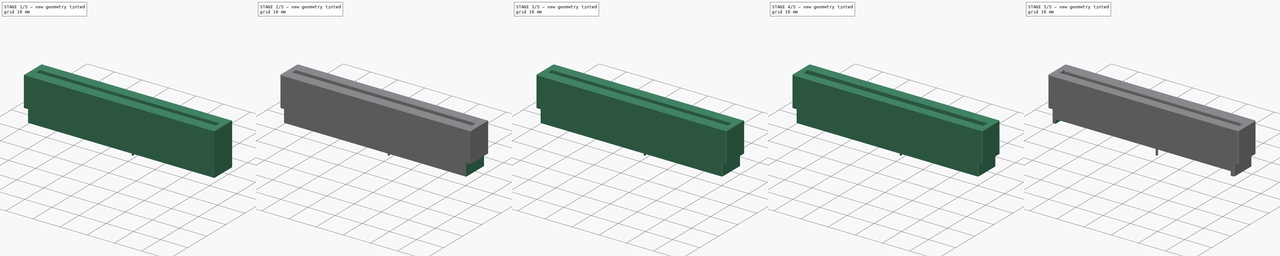
[diagram: build sequence overview — one tinted view per stage of 5, left to right]
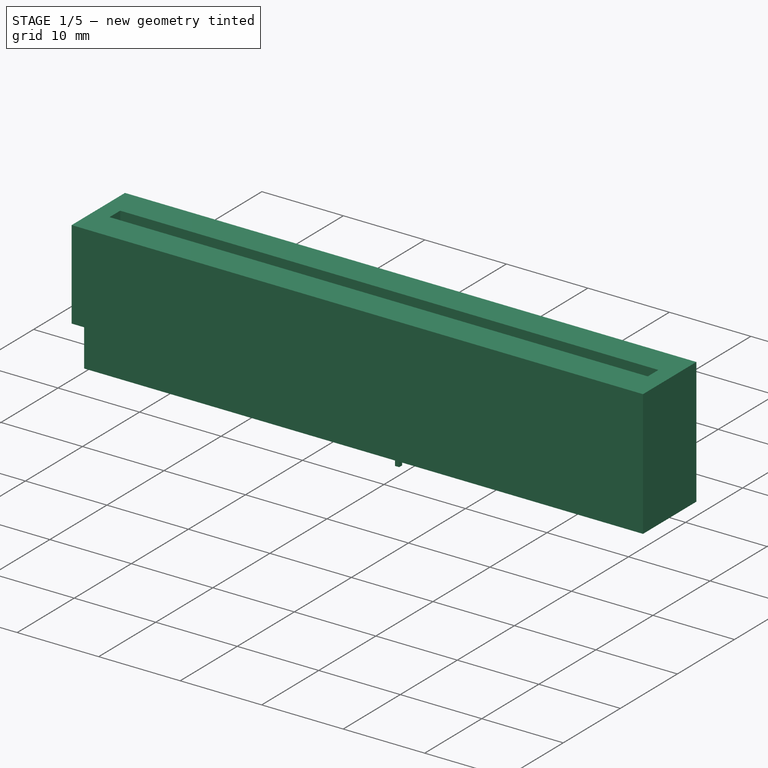
[diagram: stage 1 of 5 — iso view after this stage's code; geometry added in this stage tinted green]
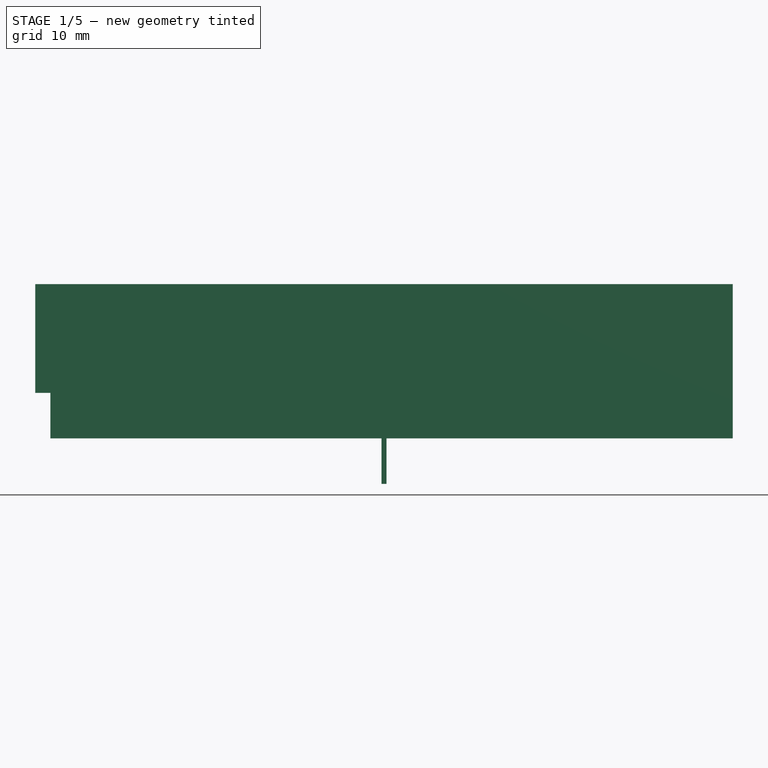
[diagram: stage 1 of 5 — front view after this stage's code; geometry added in this stage tinted green]
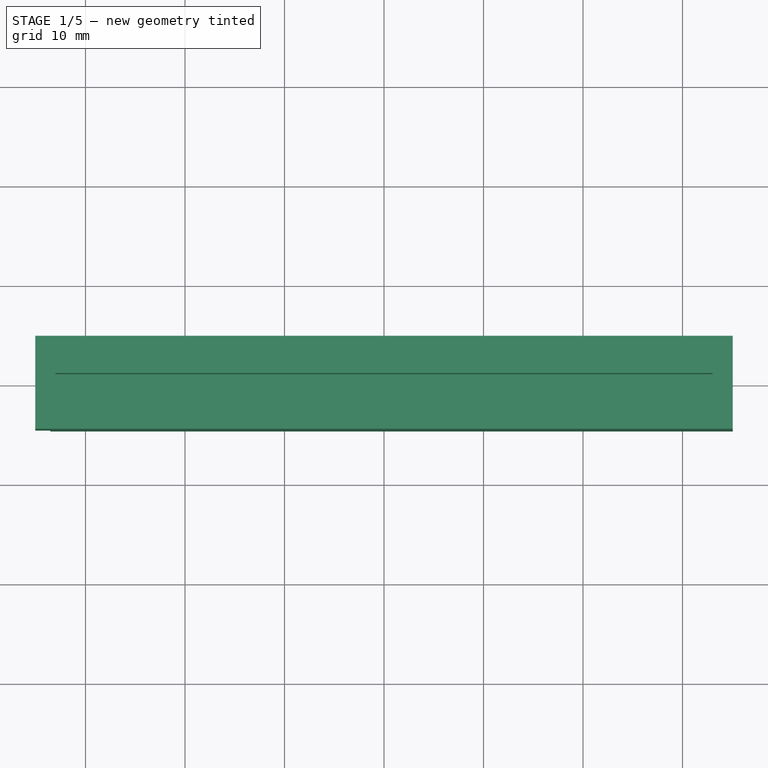
[diagram: stage 1 of 5 — top view after this stage's code; geometry added in this stage tinted green]
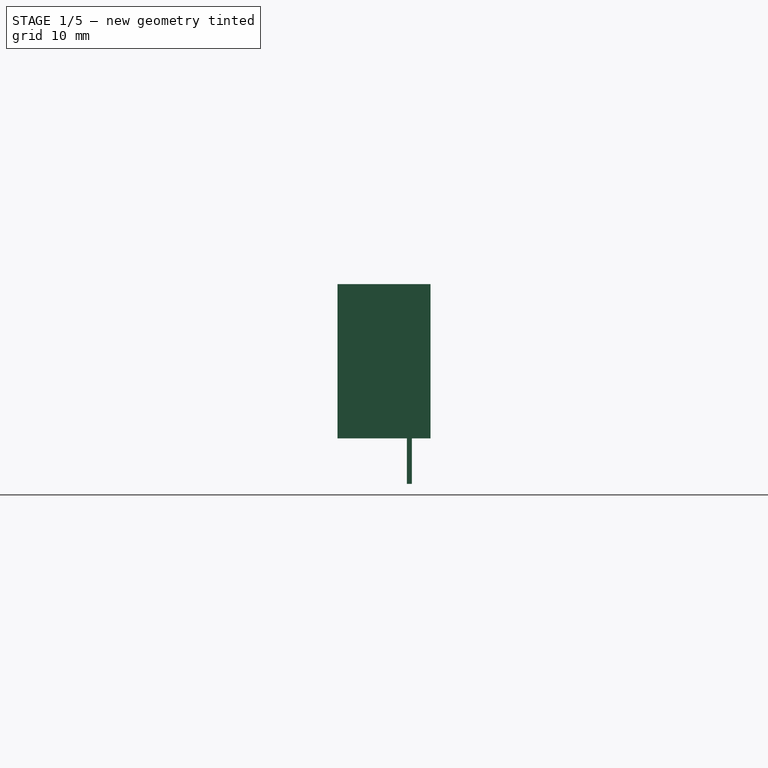
[diagram: stage 1 of 5 — right view after this stage's code; geometry added in this stage tinted green]
FCSTD DOCUMENT  (FreeCAD 0.19R24291 (Git))
Label: TE_5530843-5
License: All rights reserved
LicenseURL: http://en.wikipedia.org/wiki/All_rights_reserved
objects: PartDesign::Fillet×10, PartDesign::SubtractiveBox×6, PartDesign::AdditiveBox×2, PartDesign::Body×2, Part::Feature×1, App::DocumentObjectGroup×1, Sketcher::SketchObject×1
note: 40 computed .brp shape members not serialized (recipe doc carries the construction recipe); baked Part::Feature solids carry a one-line shape summary decoded from their .brp

FEATURE [Part::Feature] Shape001003  label="TopPads"
  shape: bbox 62.48 x 6.604 x 0.01 mm, 203 faces, 50 solids (baked)
FEATURE [App::DocumentObjectGroup] Conn_Edge_50P_fp
  Group = -> [Shape001003]
FEATURE [Sketcher::SketchObject] Sketch  label="sketch"
  FullyConstrained = false
  MapMode = 5
  Support = -> [XY_Plane]
  sketch-geometry (9):
    g0: LineSegment StartX=35.002 StartY=-4.572 StartZ=0 EndX=35.002 EndY=4.572 EndZ=0
    g1: LineSegment StartX=35.002 StartY=4.572 StartZ=0 EndX=35.002 EndY=-4.572 EndZ=0
    g2: LineSegment StartX=35.002 StartY=4.572 StartZ=0 EndX=-35.052 EndY=4.522 EndZ=0
    g3: LineSegment StartX=-35.052 StartY=4.522 StartZ=0 EndX=35.002 EndY=4.572 EndZ=0
    g4: LineSegment StartX=-35.052 StartY=4.522 StartZ=0 EndX=-35.0458 EndY=-4.6736 EndZ=0
    g5: LineSegment StartX=-35.0458 StartY=-4.6736 StartZ=0 EndX=-35.052 EndY=4.522 EndZ=0
    g6: LineSegment StartX=-35.0458 StartY=-4.6736 StartZ=0 EndX=35.002 EndY=-4.572 EndZ=0
    g7: LineSegment StartX=35.002 StartY=-4.572 StartZ=0 EndX=-35.0458 EndY=-4.6736 EndZ=0
    g8: LineSegment StartX=-33.655 StartY=0 StartZ=0 EndX=33.655 EndY=0 EndZ=0
  constraints (12):
    c: Coincident(g4,g5)
    c: Coincident(g4,g6)
    c: Coincident(g4,g7)
    c: Coincident(g2,g3)
    c: Coincident(g2,g4)
    c: Coincident(g2,g5)
    c: Coincident(g0,g1)
    c: Coincident(g0,g6)
    c: Coincident(g0,g7)
    c: Coincident(g0,g1)
    c: Coincident(g0,g2)
    c: Coincident(g0,g3)
FEATURE [PartDesign::AdditiveBox] Box
  AttacherType = Attacher::AttachEngine3D
  AttachmentOffset = pos=(-35.052,-4.6736,0) rot=(0,0,1;0rad)
  Height = 15.494
  Length = 70.104
  MapMode = 5
  Placement = pos=(-35.052,-4.6736,0) rot=(0,0,1;0rad)
  Support = -> [XY_Plane]
  Width = 9.3472
FEATURE [PartDesign::SubtractiveBox] Box001
  AttacherType = Attacher::AttachEngine3D
  AttachmentOffset = pos=(-33.02,-0.93345,8.01) rot=(0,0,1;0rad)
  BaseFeature = -> Box
  Height = 7.493
  Length = 66.04
  MapMode = 5
  Placement = pos=(-33.02,-0.93345,8.01) rot=(0,0,1;0rad)
  Support = -> [XY_Plane]
  Width = 1.8669
FEATURE [PartDesign::SubtractiveBox] Box002
  AttacherType = Attacher::AttachEngine3D
  AttachmentOffset = pos=(-35.052,-4.6736,0) rot=(0,0,1;0rad)
  BaseFeature = -> Box001
  Height = 4.572
  Length = 1.524
  MapMode = 5
  Placement = pos=(-35.052,-4.6736,0) rot=(0,0,1;0rad)
  Support = -> [XY_Plane]
  Width = 9.3472
FEATURE [PartDesign::Body] Body
  Group = -> [Sketch,Box,Box001,Box002,Box003,Fillet,Fillet001,Fillet002,Fillet003,Fillet004,Fillet005,Fillet006,Fillet007,Fillet008,Fillet009,Box004,Box005,Box006]
  Origin = -> Origin
  Tip = -> Box006
FEATURE [PartDesign::AdditiveBox] Box007
  AttacherType = Attacher::AttachEngine3D
  AttachmentOffset = pos=(-0.254,2.3,-4.572) rot=(0,0,1;0rad)
  Height = 8.572
  Length = 0.508
  MapMode = 5
  Placement = pos=(-0.254,2.3,-4.572) rot=(0,0,1;0rad)
  Support = -> [XY_Plane001]
  Width = 0.508
FEATURE [PartDesign::Body] Body001  label="Legs"
  Group = -> [Box007]
  Origin = -> Origin001
  Tip = -> Box007
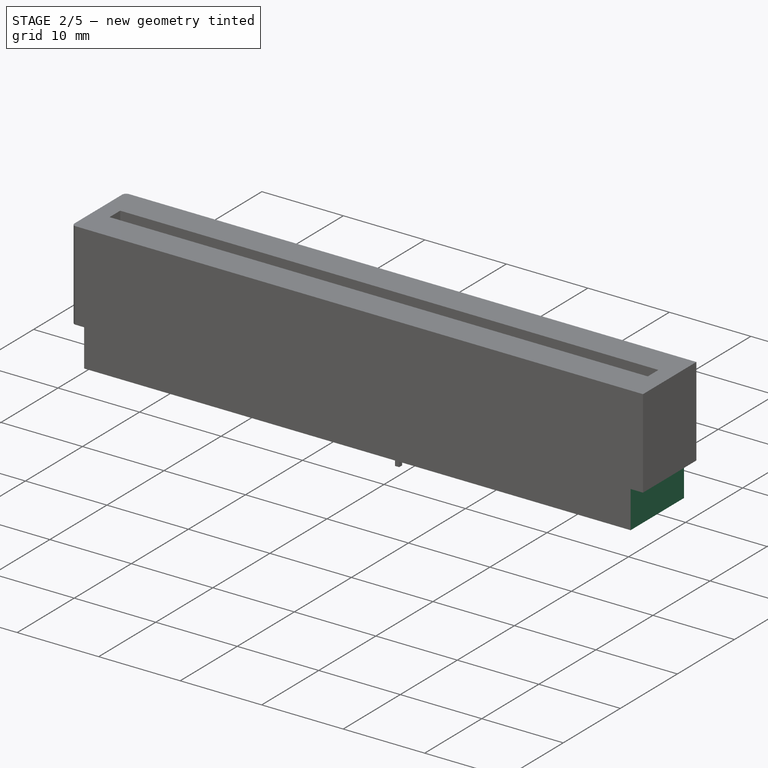
[diagram: stage 2 of 5 — iso view after this stage's code; geometry added in this stage tinted green]
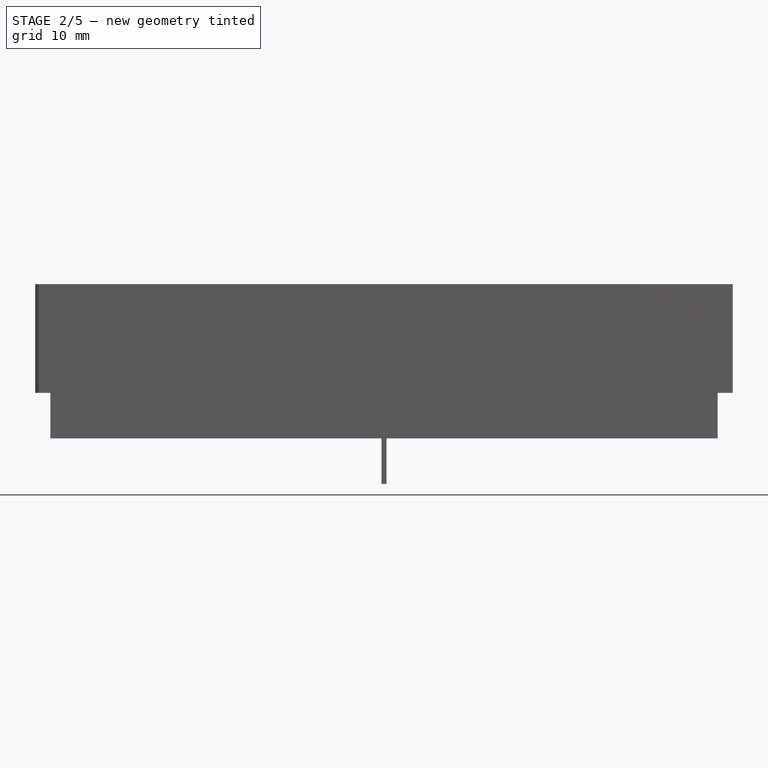
[diagram: stage 2 of 5 — front view after this stage's code; geometry added in this stage tinted green]
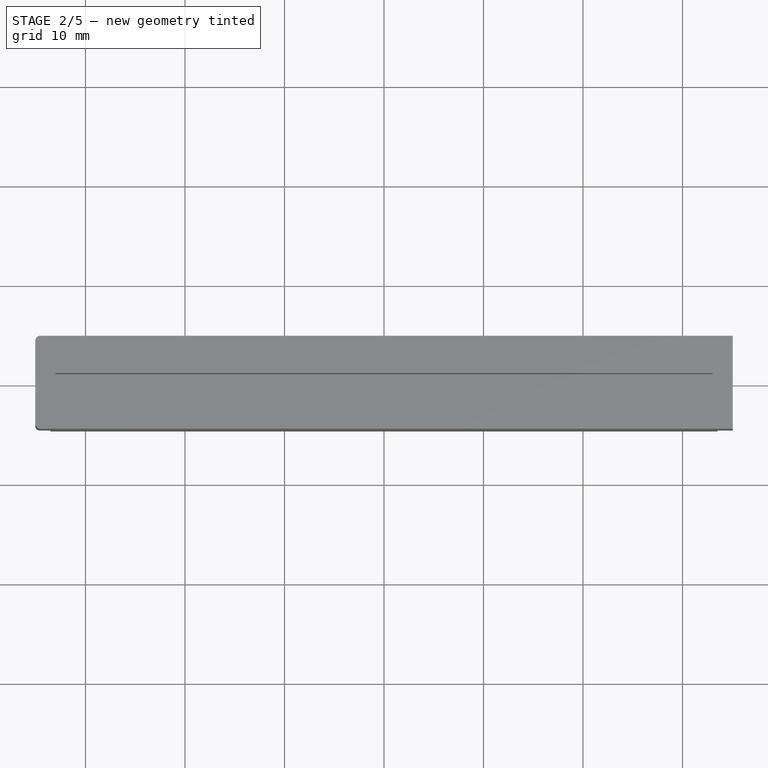
[diagram: stage 2 of 5 — top view after this stage's code; geometry added in this stage tinted green]
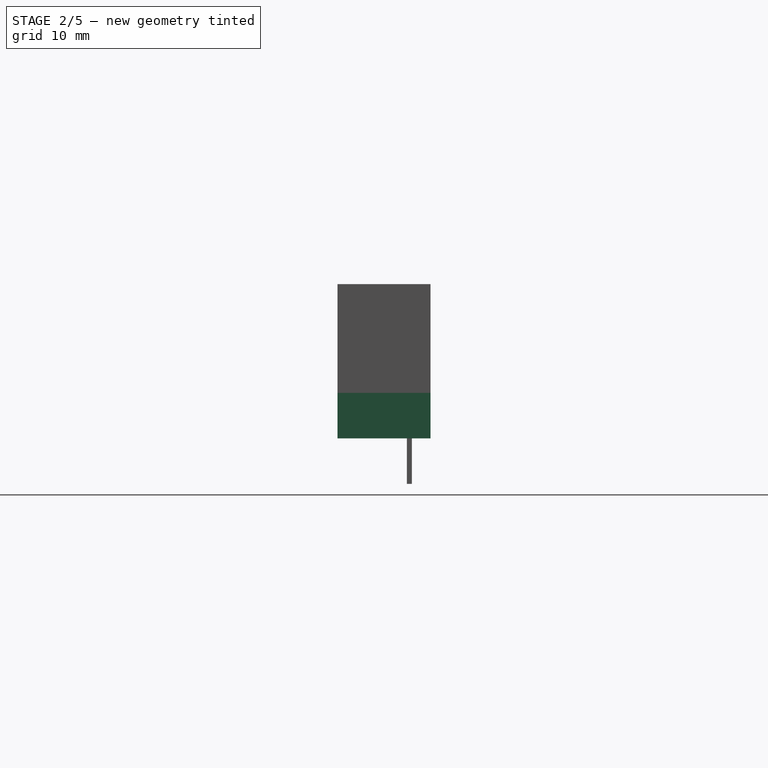
[diagram: stage 2 of 5 — right view after this stage's code; geometry added in this stage tinted green]
FEATURE [PartDesign::SubtractiveBox] Box003
  AttacherType = Attacher::AttachEngine3D
  AttachmentOffset = pos=(33.53,-4.6736,0) rot=(0,0,1;0rad)
  BaseFeature = -> Box002
  Height = 4.572
  Length = 1.524
  MapMode = 5
  Placement = pos=(33.53,-4.6736,0) rot=(0,0,1;0rad)
  Support = -> [XY_Plane]
  Width = 9.3472
FEATURE [PartDesign::Fillet] Fillet
  Base = -> Box003 [Edge1]
  BaseFeature = -> Box003
  Placement = pos=(33.53,-4.6736,0) rot=(0,0,1;0rad)
  Radius = 0.5
  SupportTransform = false
FEATURE [PartDesign::Fillet] Fillet001
  Base = -> Fillet [Edge3]
  BaseFeature = -> Fillet
  Placement = pos=(33.53,-4.6736,0) rot=(0,0,1;0rad)
  Radius = 0.5
  SupportTransform = false
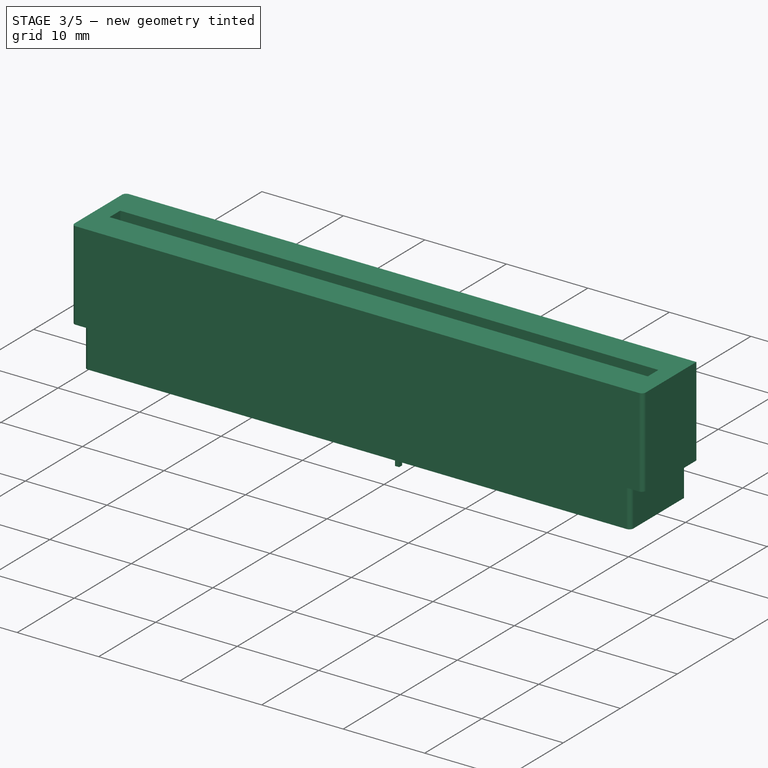
[diagram: stage 3 of 5 — iso view after this stage's code; geometry added in this stage tinted green]
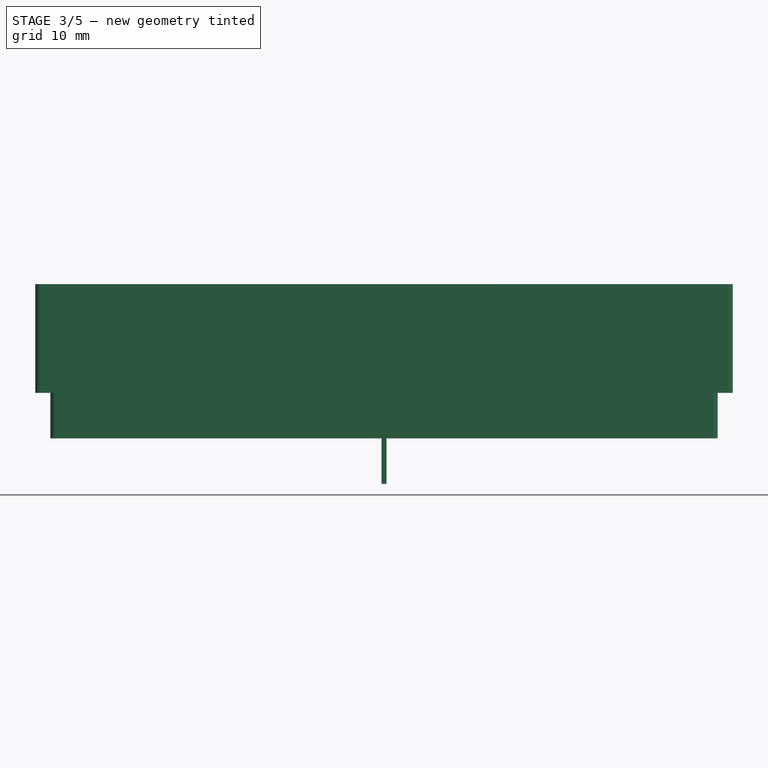
[diagram: stage 3 of 5 — front view after this stage's code; geometry added in this stage tinted green]
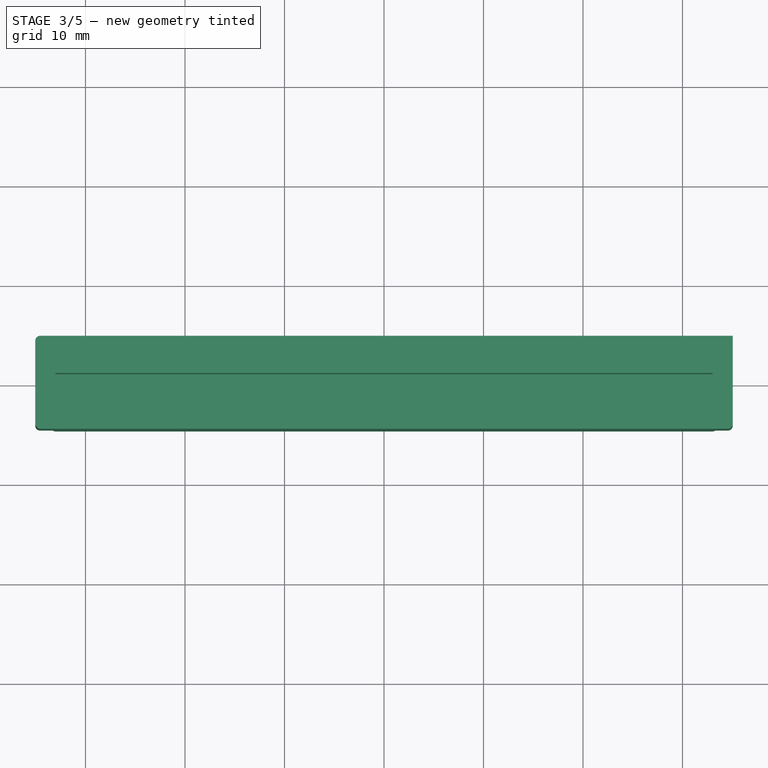
[diagram: stage 3 of 5 — top view after this stage's code; geometry added in this stage tinted green]
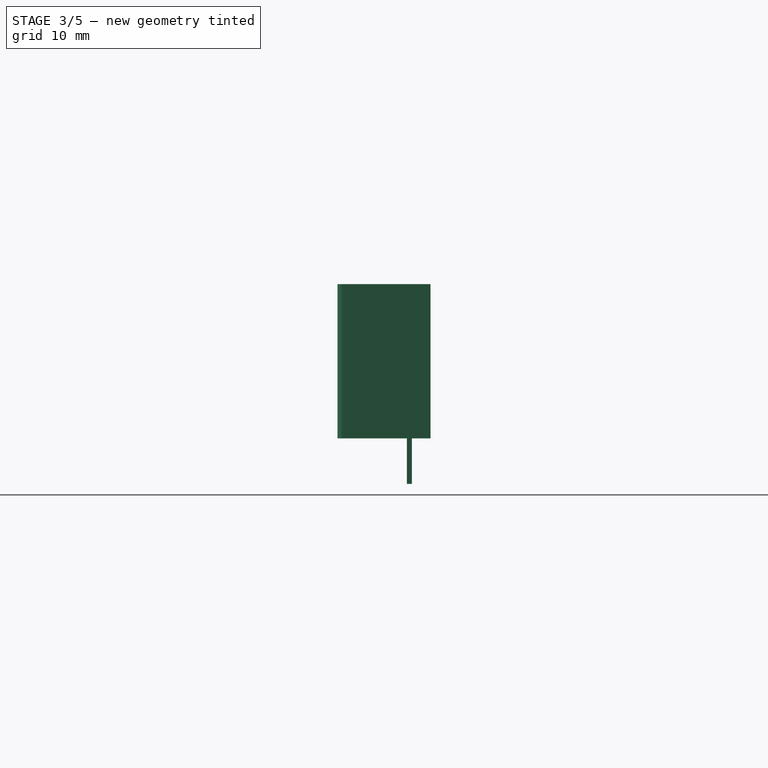
[diagram: stage 3 of 5 — right view after this stage's code; geometry added in this stage tinted green]
FEATURE [PartDesign::Fillet] Fillet002
  Base = -> Fillet001 [Edge28]
  BaseFeature = -> Fillet001
  Placement = pos=(33.53,-4.6736,0) rot=(0,0,1;0rad)
  Radius = 0.5
  SupportTransform = false
FEATURE [PartDesign::Fillet] Fillet003
  Base = -> Fillet002 [Edge10]
  BaseFeature = -> Fillet002
  Placement = pos=(33.53,-4.6736,0) rot=(0,0,1;0rad)
  Radius = 0.5
  SupportTransform = false
FEATURE [PartDesign::Fillet] Fillet004
  Base = -> Fillet003 [Edge25]
  BaseFeature = -> Fillet003
  Placement = pos=(33.53,-4.6736,0) rot=(0,0,1;0rad)
  Radius = 0.5
  SupportTransform = false
FEATURE [PartDesign::Fillet] Fillet005
  Base = -> Fillet004 [Edge8]
  BaseFeature = -> Fillet004
  Placement = pos=(33.53,-4.6736,0) rot=(0,0,1;0rad)
  Radius = 0.5
  SupportTransform = false
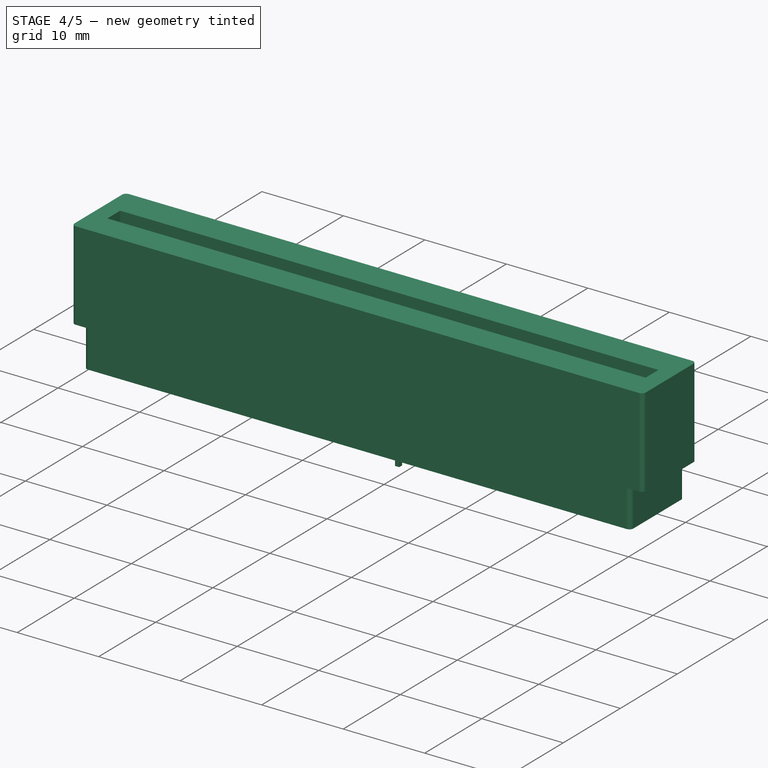
[diagram: stage 4 of 5 — iso view after this stage's code; geometry added in this stage tinted green]
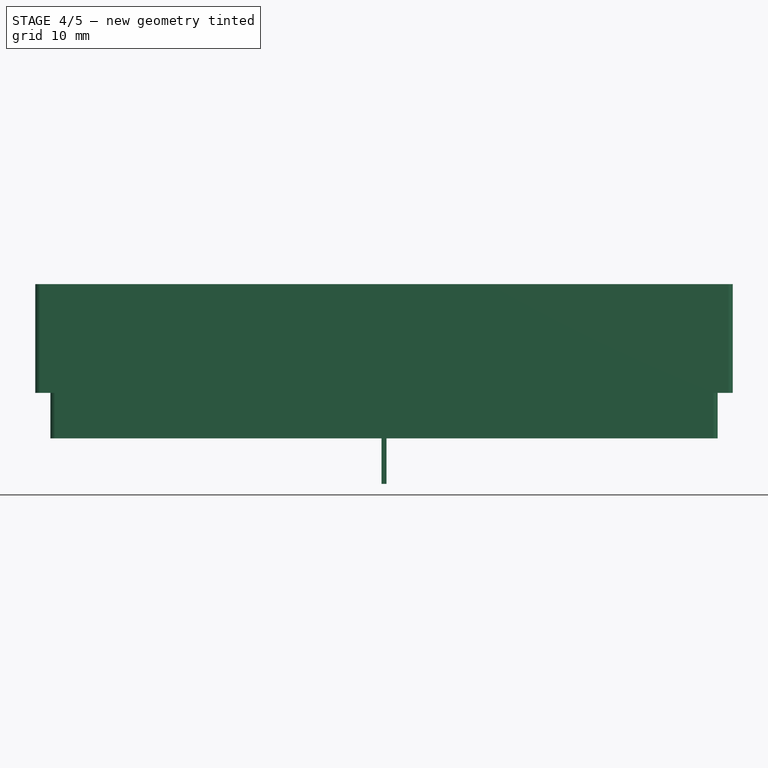
[diagram: stage 4 of 5 — front view after this stage's code; geometry added in this stage tinted green]
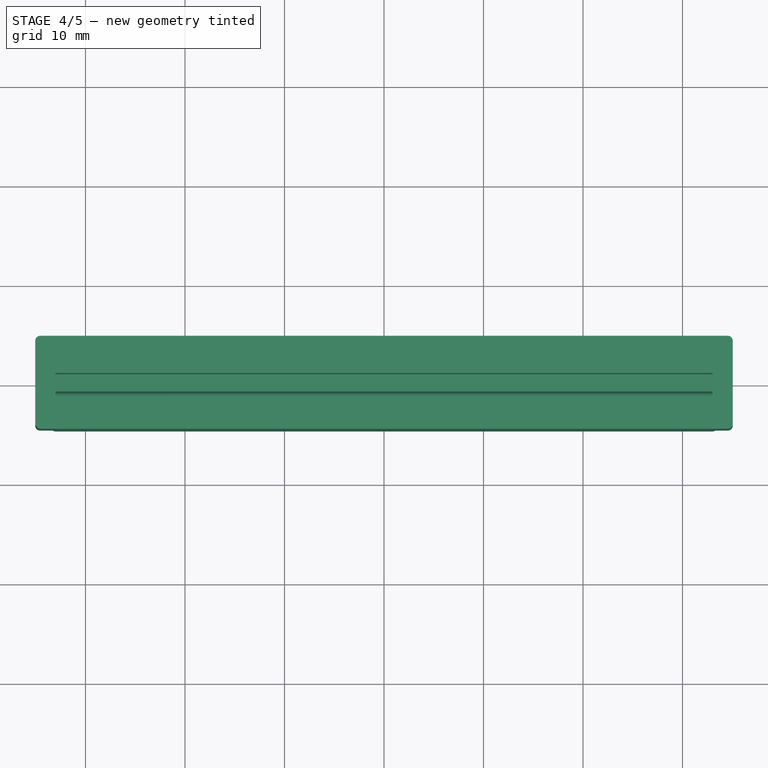
[diagram: stage 4 of 5 — top view after this stage's code; geometry added in this stage tinted green]
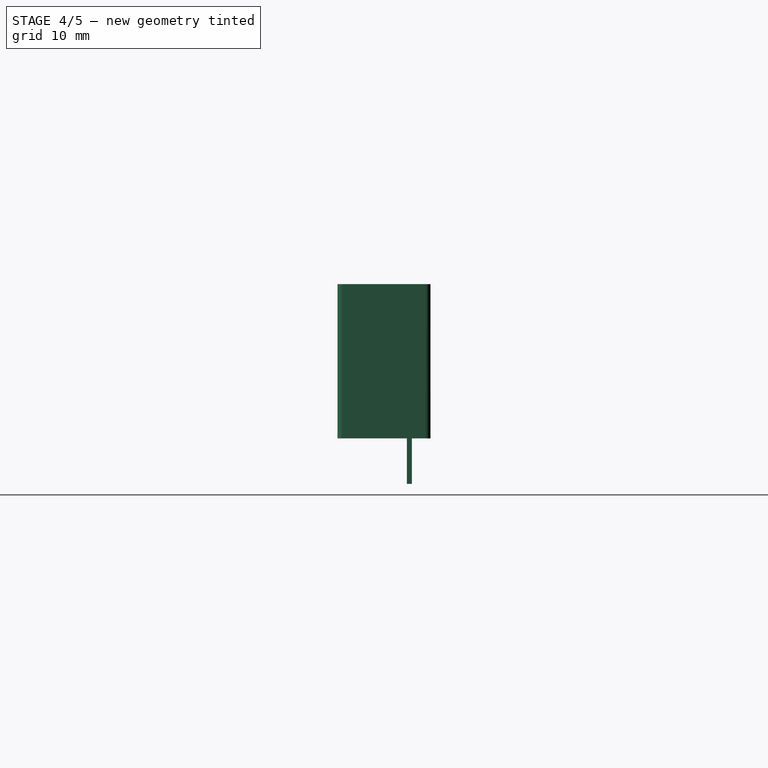
[diagram: stage 4 of 5 — right view after this stage's code; geometry added in this stage tinted green]
FEATURE [PartDesign::Fillet] Fillet006
  Base = -> Fillet005 [Edge46]
  BaseFeature = -> Fillet005
  Placement = pos=(33.53,-4.6736,0) rot=(0,0,1;0rad)
  Radius = 0.5
  SupportTransform = false
FEATURE [PartDesign::Fillet] Fillet007
  Base = -> Fillet006 [Edge21]
  BaseFeature = -> Fillet006
  Placement = pos=(33.53,-4.6736,0) rot=(0,0,1;0rad)
  Radius = 0.5
  SupportTransform = false
FEATURE [PartDesign::Fillet] Fillet008
  Base = -> Fillet007 [Edge40]
  BaseFeature = -> Fillet007
  Placement = pos=(33.53,-4.6736,0) rot=(0,0,1;0rad)
  Radius = 0.5
  SupportTransform = false
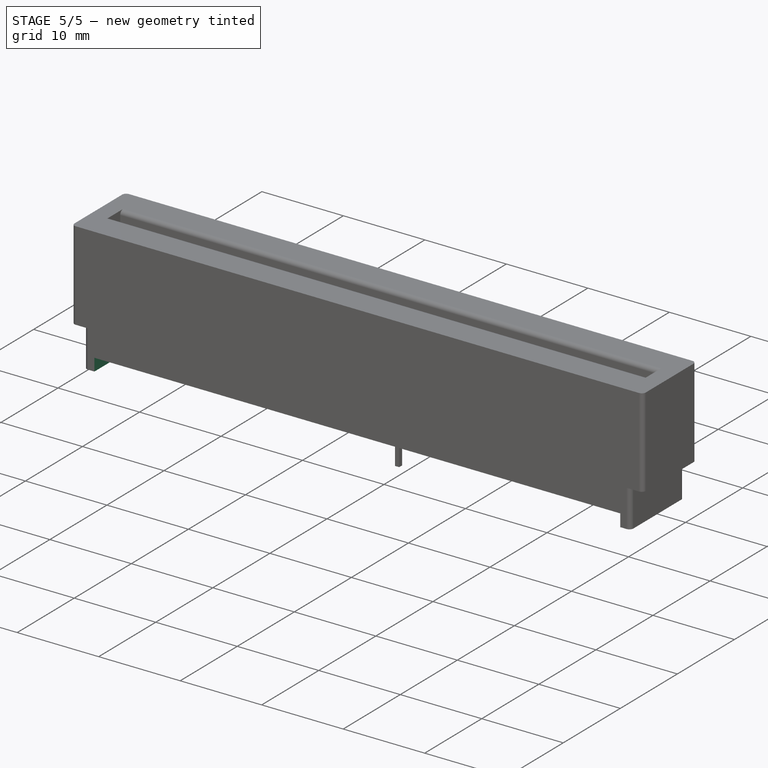
[diagram: stage 5 of 5 — iso view after this stage's code; geometry added in this stage tinted green]
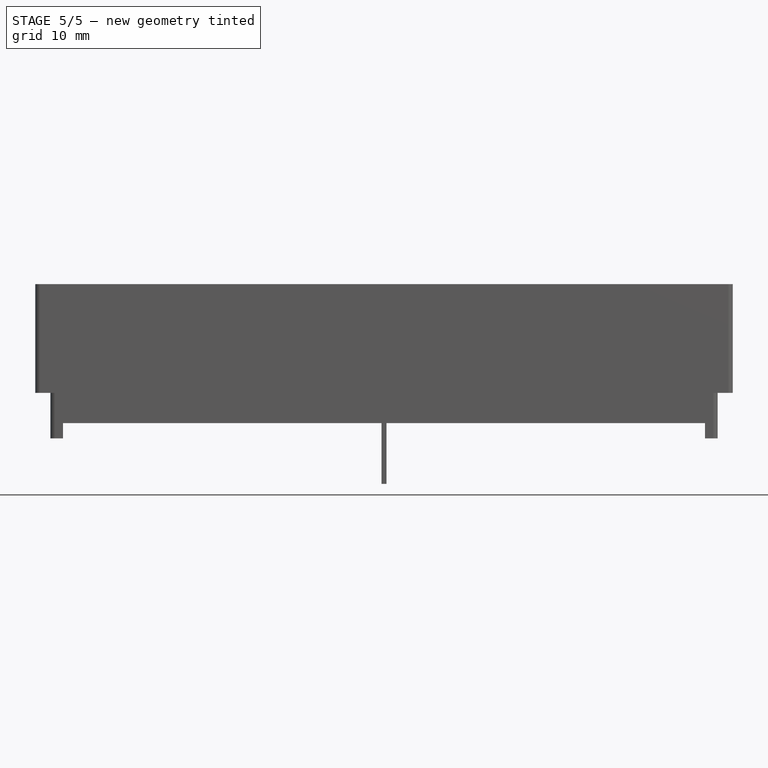
[diagram: stage 5 of 5 — front view after this stage's code; geometry added in this stage tinted green]
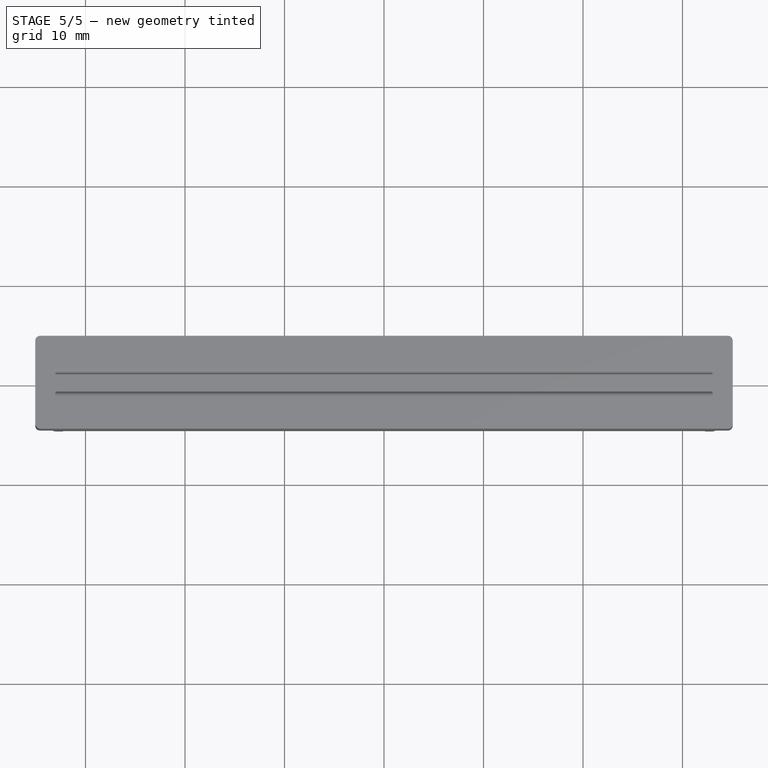
[diagram: stage 5 of 5 — top view after this stage's code; geometry added in this stage tinted green]
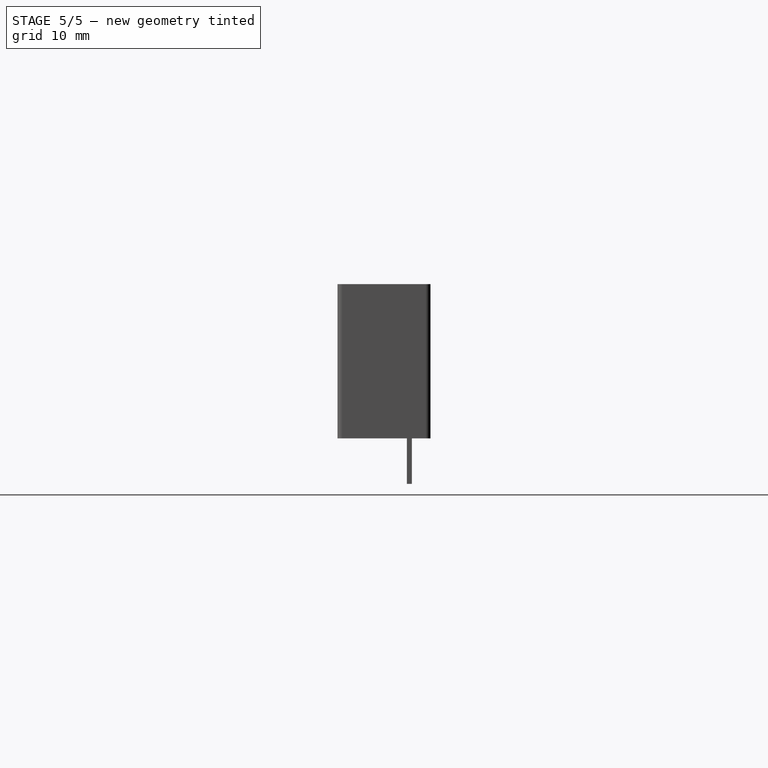
[diagram: stage 5 of 5 — right view after this stage's code; geometry added in this stage tinted green]
FEATURE [PartDesign::Fillet] Fillet009
  Base = -> Fillet008 [Edge4]
  BaseFeature = -> Fillet008
  Placement = pos=(33.53,-4.6736,0) rot=(0,0,1;0rad)
  Radius = 0.5
  SupportTransform = false
FEATURE [PartDesign::SubtractiveBox] Box004  label="bottom-cut"
  AttacherType = Attacher::AttachEngine3D
  AttachmentOffset = pos=(-32.258,-4.6736,0) rot=(0,0,1;0rad)
  BaseFeature = -> Fillet009
  Height = 1.524
  Length = 64.516
  MapMode = 5
  Placement = pos=(-32.258,-4.6736,0) rot=(0,0,1;0rad)
  Support = -> [XY_Plane]
  Width = 9.3472
FEATURE [PartDesign::SubtractiveBox] Box005  label="leg-cut1"
  AttacherType = Attacher::AttachEngine3D
  AttachmentOffset = pos=(-0.508,-2.9337,0) rot=(0,0,1;0rad)
  BaseFeature = -> Box004
  Height = 13
  Length = 1.016
  MapMode = 5
  Placement = pos=(-0.508,-2.9337,0) rot=(0,0,1;0rad)
  Support = -> [XY_Plane]
  Width = 0.762
FEATURE [PartDesign::SubtractiveBox] Box006
  AttacherType = Attacher::AttachEngine3D
  AttachmentOffset = pos=(-0.508,2.1717,0) rot=(0,0,1;0rad)
  BaseFeature = -> Box005
  Height = 9
  Length = 1.016
  MapMode = 5
  Placement = pos=(-0.508,2.1717,0) rot=(0,0,1;0rad)
  Support = -> [XY_Plane]
  Width = 0.762
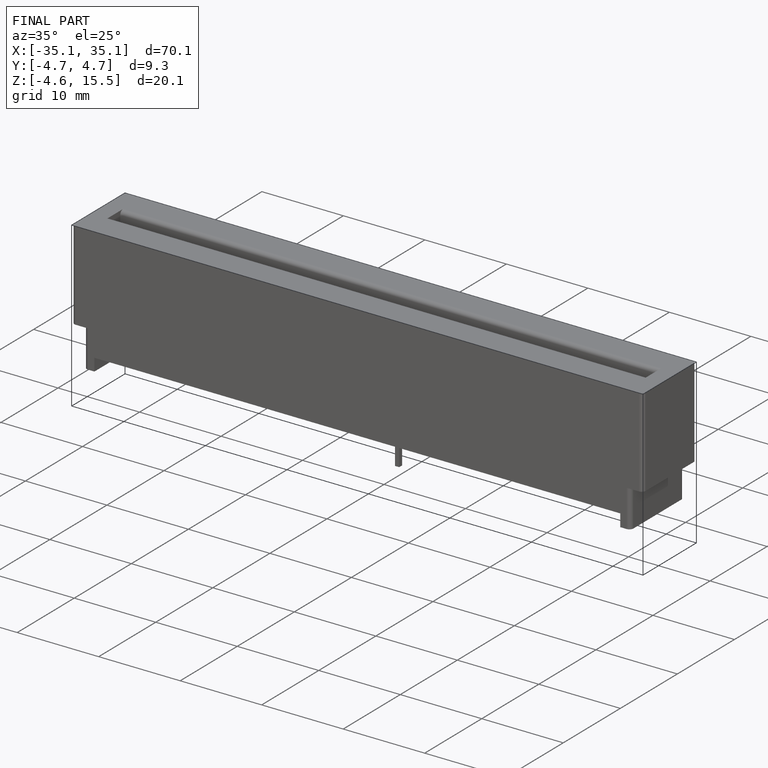
[diagram: finished part — iso view with bounding-box wireframe]
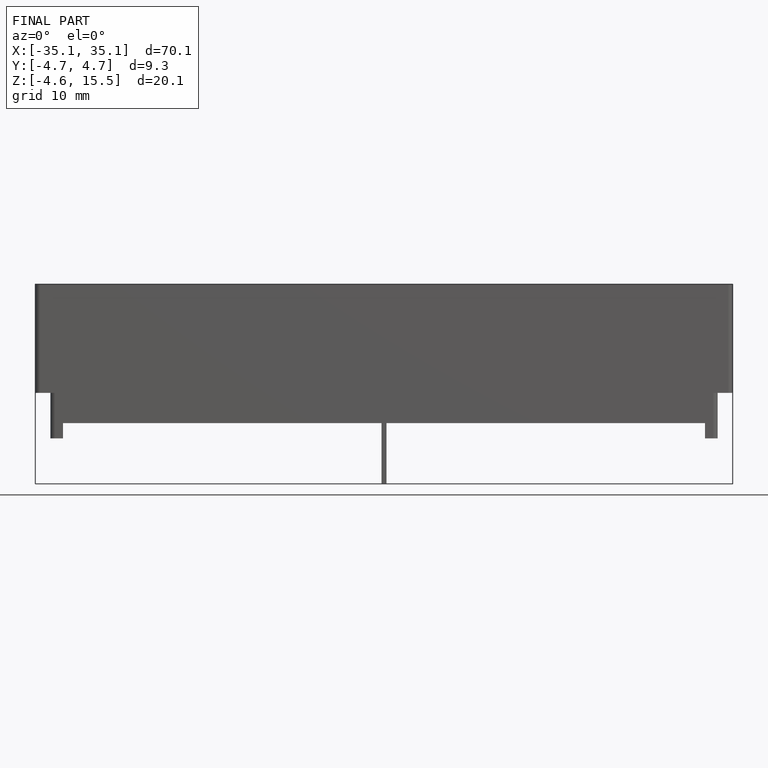
[diagram: finished part — front view with bounding-box wireframe]
